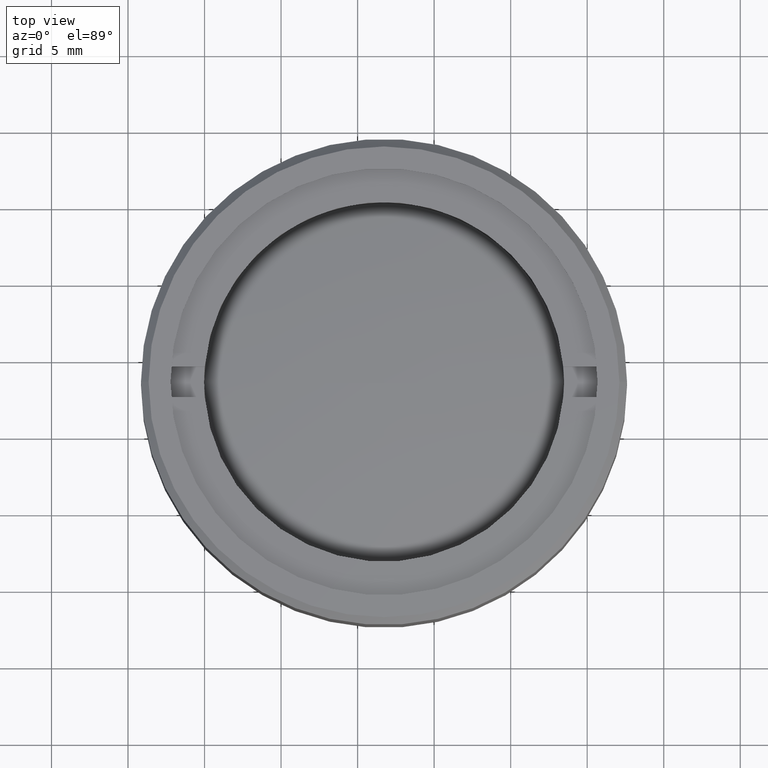
[diagram: clean part render]
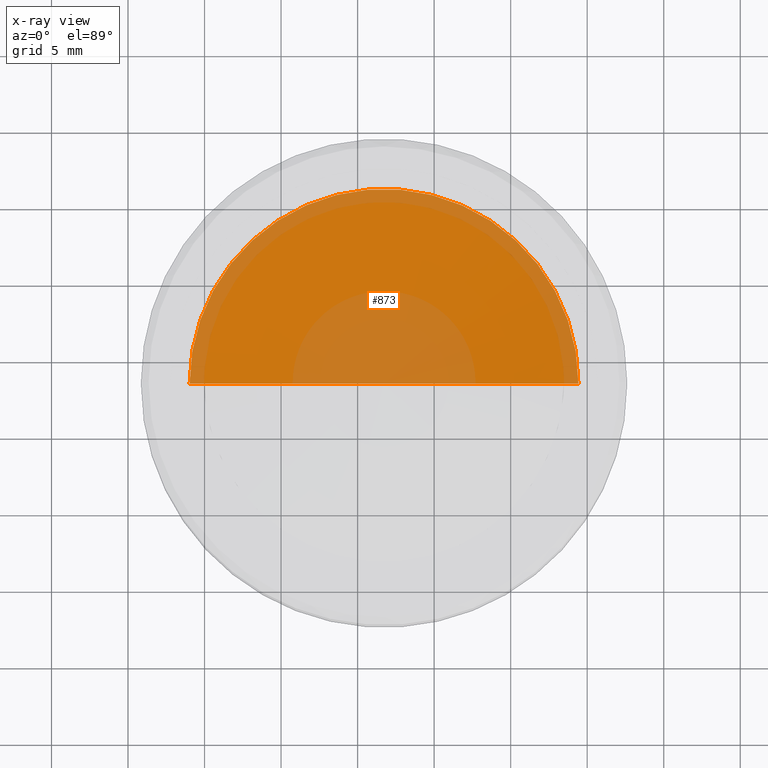
[diagram: x-ray — body ghosted, one internal face saturated and labeled with its STEP entity id]
A machine part, top view, then the same camera in x-ray: the body is ghosted and one INTERNAL B-rep face — a face not visible from any outside direction — is saturated and labeled: STEP entity #873.
In plain terms, the highlighted spherical surface has radius 66.7 mm.
Its self-contained STEP definition (entity closure, byte-faithful):
#20 = AXIS2_PLACEMENT_3D ( 'NONE', #149, #269, #646 ) ;
#79 = EDGE_CURVE ( 'NONE', #1062, #1360, #1432, .T. ) ;
#85 = EDGE_CURVE ( 'NONE', #1062, #1360, #1377, .T. ) ;
#117 = CARTESIAN_POINT ( 'NONE',  ( 0.000000000000000000, 0.000000000000000000, 61.00000000000000000 ) ) ;
#149 = CARTESIAN_POINT ( 'NONE',  ( -1.636215218604930022E-16, 0.000000000000000000, -4.479767867639839807 ) ) ;
#269 = DIRECTION ( 'NONE',  ( -6.829619984160659279E-17, 0.000000000000000000, -1.000000000000000000 ) ) ;
#404 = AXIS2_PLACEMENT_3D ( 'NONE', #117, #1207, #1179 ) ;
#487 = CARTESIAN_POINT ( 'NONE',  ( 0.000000000000000000, 0.000000000000000000, 61.00000000000000000 ) ) ;
#505 = CARTESIAN_POINT ( 'NONE',  ( -12.69999999999999929, -1.555301434917139813E-15, -4.479767867639839807 ) ) ;
#646 = DIRECTION ( 'NONE',  ( -1.000000000000000000, 0.000000000000000000, 6.829619984160658046E-17 ) ) ;
#873 = ADVANCED_FACE ( 'NONE', ( #1025 ), #1678, .T. ) ;
#934 = CARTESIAN_POINT ( 'NONE',  ( 12.69999999999999929, 0.000000000000000000, -4.479767867639845136 ) ) ;
#1015 = DIRECTION ( 'NONE',  ( -0.000000000000000000, 0.000000000000000000, 1.000000000000000000 ) ) ;
#1025 = FACE_OUTER_BOUND ( 'NONE', #1384, .T. ) ;
#1062 = VERTEX_POINT ( 'NONE', #505 ) ;
#1087 = ORIENTED_EDGE ( 'NONE', *, *, #79, .T. ) ;
#1179 = DIRECTION ( 'NONE',  ( 1.000000000000000000, 1.224646799147352221E-16, 0.000000000000000000 ) ) ;
#1194 = AXIS2_PLACEMENT_3D ( 'NONE', #487, #1015, #1549 ) ;
#1207 = DIRECTION ( 'NONE',  ( 1.224646799147351975E-16, -1.000000000000000000, -4.472967772851155493E-33 ) ) ;
#1360 = VERTEX_POINT ( 'NONE', #934 ) ;
#1377 = CIRCLE ( 'NONE', #404, 66.69999999999998863 ) ;
#1384 = EDGE_LOOP ( 'NONE', ( #1392, #1087 ) ) ;
#1392 = ORIENTED_EDGE ( 'NONE', *, *, #85, .F. ) ;
#1432 = CIRCLE ( 'NONE', #20, 12.69999999999999929 ) ;
#1549 = DIRECTION ( 'NONE',  ( 1.000000000000000000, 0.000000000000000000, 0.000000000000000000 ) ) ;
#1678 = SPHERICAL_SURFACE ( 'NONE', #1194, 66.69999999999998863 ) ;